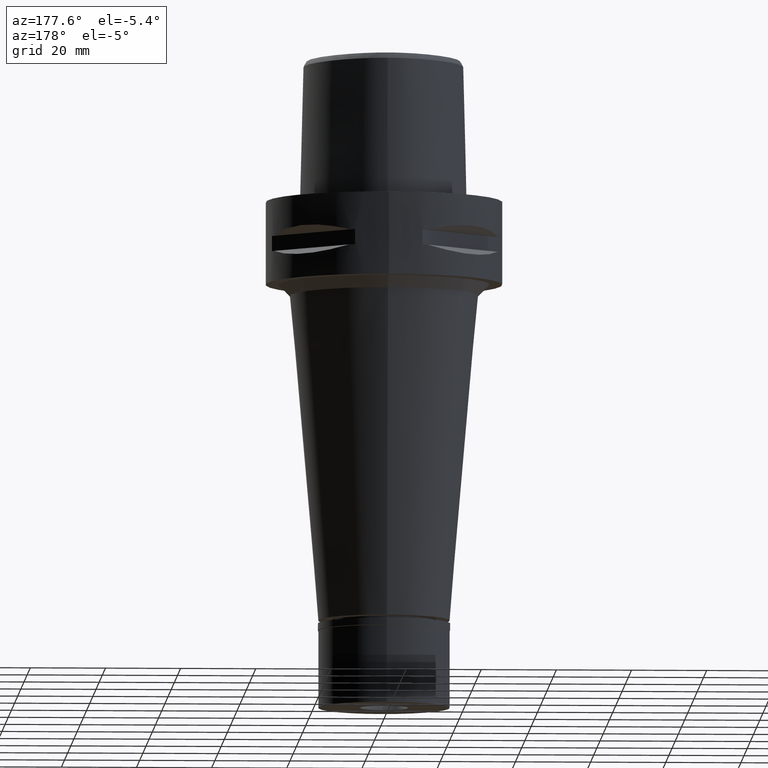
[diagram: clean part render]
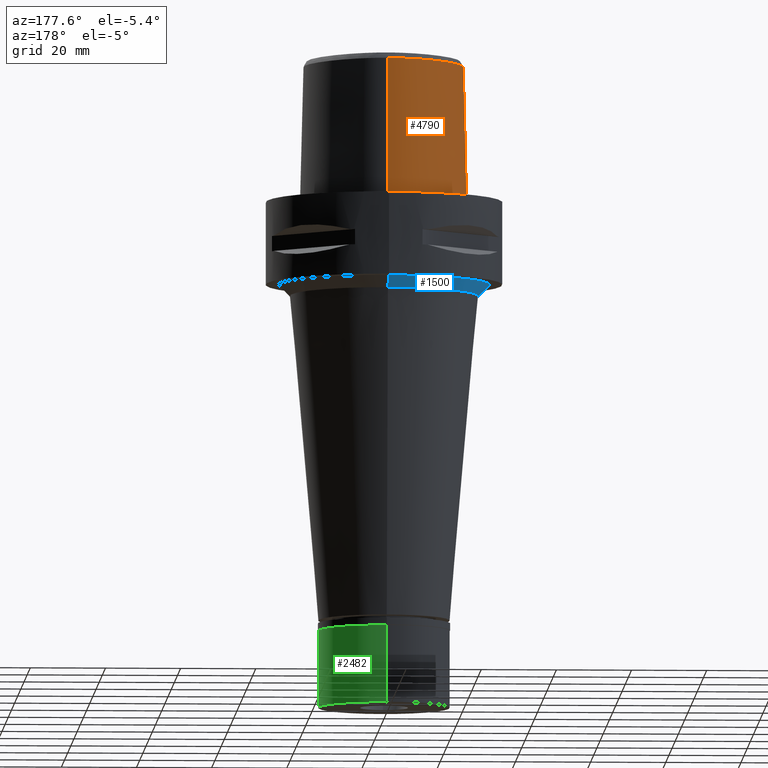
[diagram: same view with three faces highlighted in distinct colors, each labeled with its STEP entity id]
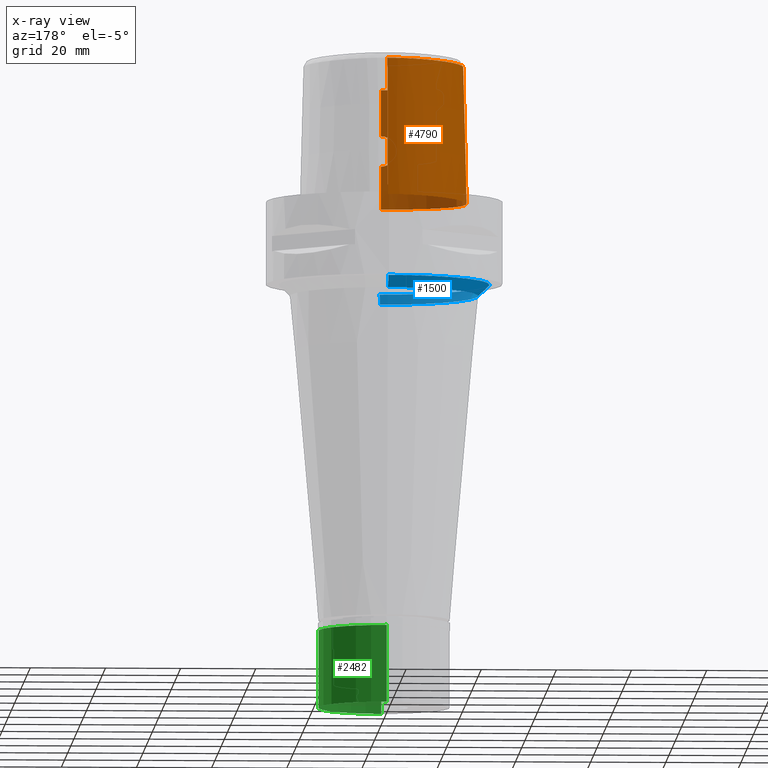
[diagram: x-ray of the same camera — body ghosted, the three highlighted faces saturated]
A machine part, auxiliary view with three faces highlighted in distinct colors.
The next image is the same camera in x-ray (body ghosted, the three faces saturated) — at least one of them is partly hidden behind the body in this view.
Their STEP definitions:

[orange] entity #4790 — the highlighted face is a freeform B-spline surface patch.
#7 = VERTEX_POINT ( 'NONE', #3811 ) ;
#28 = B_SPLINE_CURVE_WITH_KNOTS ( 'NONE', 3,
 ( #550, #2122, #168, #3958, #868, #2804, #4362, #469, #2041, #4517, #4492, #4186, #3728, #4938, #4463, #2629, #2965, #2910, #4160, #1383, #579, #1458, #4089, #3373, #1007, #1816, #2225, #217, #976, #2150, #4881, #271, #3321, #1439, #681, #2248, #3010, #3784, #1053, #2989, #2936, #2198, #4540, #2530, #3807, #293, #4570, #1838, #2601, #657, #2558, #2579, #3704, #605, #3392, #1416, #195, #4959, #1759, #4117, #2175, #1783, #3755, #3345, #4909, #1031, #4138, #631, #246, #1083, #1858, #3415, #4983, #3857, #319, #1579, #727, #2725, #1553, #343, #3081, #1888, #4646, #3927, #4621, #2296, #2319, #2701, #417, #3443, #1482, #755, #1153, #4676, #703 ),
 .UNSPECIFIED., .F., .F.,
 ( 4, 2, 2, 1, 1, 1, 2, 2, 2, 2, 1, 2, 2, 2, 1, 1, 1, 2, 2, 2, 2, 2, 1, 1, 2, 2, 2, 2, 1, 2, 2, 2, 2, 1, 1, 1, 2, 2, 2, 2, 1, 2, 2, 2, 1, 1, 1, 2, 2, 2, 2, 2, 1, 1, 2, 2, 4 ),
 ( 0.0000000000000000000, 0.06250000000001115774, 0.09375000000001666722, 0.1093750000000193179, 0.1171875000000206363, 0.1210937500000211775, 0.1230468750000215938, 0.1250000000000220102, 0.1562500000000262568, 0.1718750000000283384, 0.1796875000000293654, 0.1835937500000296707, 0.1875000000000299760, 0.2187500000000330569, 0.2343750000000345557, 0.2421875000000353606, 0.2460937500000360267, 0.2480468750000360545, 0.2500000000000360822, 0.3125000000000375810, 0.3437500000000383027, 0.3593750000000387468, 0.3671875000000389133, 0.3710937500000389688, 0.3730468750000386358, 0.3750000000000382472, 0.4375000000000286438, 0.4687500000000233702, 0.4843750000000208167, 0.4921875000000194844, 0.5000000000000180966, 0.5625000000000086597, 0.5937500000000042188, 0.6093750000000021094, 0.6171875000000009992, 0.6210937500000005551, 0.6230468750000002220, 0.6249999999999998890, 0.6562499999999998890, 0.6718750000000001110, 0.6796875000000001110, 0.6835937500000001110, 0.6875000000000001110, 0.7187500000000013323, 0.7343750000000019984, 0.7421875000000021094, 0.7460937500000023315, 0.7480468750000024425, 0.7500000000000025535, 0.8125000000000041078, 0.8437500000000049960, 0.8593750000000054401, 0.8671875000000055511, 0.8710937500000057732, 0.8730468750000056621, 0.8750000000000055511, 1.000000000000000000 ),
 .UNSPECIFIED. ) ;
#34 = CARTESIAN_POINT ( 'NONE',  ( -16.95889172207992246, -15.67838866697177735, 2.483871594191090770E-07 ) ) ;
#111 = CARTESIAN_POINT ( 'NONE',  ( -20.34961798018169787, -11.74885741876239997, 2.483871594191090770E-07 ) ) ;
#133 = CARTESIAN_POINT ( 'NONE',  ( -18.08416038725999897, 10.44089487449000053, -0.7304378672458999855 ) ) ;
#136 = CARTESIAN_POINT ( 'NONE',  ( -19.55745547456363553, -11.29150218116343041, 36.52186244848002872 ) ) ;
#163 = CARTESIAN_POINT ( 'NONE',  ( 0.6850314009299001139, 22.83959032778000164, 24.59140819727999983 ) ) ;
#168 = CARTESIAN_POINT ( 'NONE',  ( -0.5036866637238499589, -20.18406862059044471, 19.52728785669997080 ) ) ;
#192 = CARTESIAN_POINT ( 'NONE',  ( -10.75753574118999900, 19.18839676113000081, -0.7304378672458999855 ) ) ;
#195 = CARTESIAN_POINT ( 'NONE',  ( -3.830499027157554970, -20.11062698623148393, 14.18153512544096806 ) ) ;
#213 = CARTESIAN_POINT ( 'NONE',  ( -20.65947727076000007, -8.729764289590001169, 37.25233122954000464 ) ) ;
#217 = CARTESIAN_POINT ( 'NONE',  ( -2.841055161951131058, -20.10000556631501567, 18.38634273631047833 ) ) ;
#246 = CARTESIAN_POINT ( 'NONE',  ( -3.408875187706379872, -20.17633333109262495, 13.31312751154035645 ) ) ;
#271 = CARTESIAN_POINT ( 'NONE',  ( -3.258446753586562661, -20.07522384658319936, 17.91983021284167066 ) ) ;
#279 = CARTESIAN_POINT ( 'NONE',  ( -2.503154198992743051, -19.81241979316217439, 31.80000012753028571 ) ) ;
#293 = CARTESIAN_POINT ( 'NONE',  ( -4.019649019913691390, -20.04316019033999652, 16.01163126942445913 ) ) ;
#319 = CARTESIAN_POINT ( 'NONE',  ( -3.024127618930173345, -20.22444760030267119, 12.80466032897661499 ) ) ;
#340 = CARTESIAN_POINT ( 'NONE',  ( -16.57726026073000014, -15.19304451834000069, 24.59140819727999983 ) ) ;
#343 = CARTESIAN_POINT ( 'NONE',  ( -2.870809693610273605, -20.24156730632854817, 12.64324605246994793 ) ) ;
#389 = EDGE_CURVE ( 'NONE', #4992, #7, #3562, .T. ) ;
#417 = CARTESIAN_POINT ( 'NONE',  ( -1.592612062467924749, -20.34460894491102678, 11.77623291199328115 ) ) ;
#420 = CARTESIAN_POINT ( 'NONE',  ( -18.06826687986402646, 10.43171874688041001, 2.483871594191090770E-07 ) ) ;
#441 = CARTESIAN_POINT ( 'NONE',  ( -0.8548392418636427958, 23.47499999379704150, 2.483871594191090770E-07 ) ) ;
#469 = CARTESIAN_POINT ( 'NONE',  ( -1.435263460292240945, -20.16346600381253396, 19.28743623777307903 ) ) ;
#522 = CARTESIAN_POINT ( 'NONE',  ( -0.5821289162039000598, 22.88453074891999961, 24.59140819727999983 ) ) ;
#545 = CARTESIAN_POINT ( 'NONE',  ( -21.36961487273000060, -0.3886498146834000411, 24.59140819727999983 ) ) ;
#550 = CARTESIAN_POINT ( 'NONE',  ( 0.0000000000000000000, -20.18628283968999781, 19.55000000000000071 ) ) ;
#574 = CARTESIAN_POINT ( 'NONE',  ( -17.80867301941000136, 10.28184205001000073, 11.93048516502000034 ) ) ;
#579 = CARTESIAN_POINT ( 'NONE',  ( -2.236225399043144435, -20.13170464962382411, 18.87669531694537284 ) ) ;
#581 = B_SPLINE_SURFACE_WITH_KNOTS ( 'NONE', 3, 3, ( 
 ( #1333, #4797, #163, #4132 ),
 ( #1380, #4460, #1358, #1026 ),
 ( #627, #2930, #522, #4512 ),
 ( #2193, #1302, #3340, #2116 ),
 ( #2883, #2171, #3673, #3296 ),
 ( #2475, #3236, #4030, #951 ),
 ( #192, #2147, #3645, #2852 ),
 ( #3747, #4053, #4487, #926 ),
 ( #133, #574, #601, #1700 ),
 ( #3724, #3266, #4904, #1001 ),
 ( #4438, #2500, #545, #1734 ),
 ( #4855, #2907, #2553, #3318 ),
 ( #973, #2525, #4085, #3701 ),
 ( #1756, #4112, #4878, #213 ),
 ( #1779, #1410, #3853, #1146 ),
 ( #4562, #4256, #1478, #4977 ),
 ( #1104, #3779, #1048, #4182 ),
 ( #3368, #3035, #676, #1909 ),
 ( #4617, #651, #340, #3460 ),
 ( #4596, #1811, #1123, #2220 ),
 ( #4933, #1521, #4203, #3387 ),
 ( #2647, #1435, #1077, #699 ),
 ( #2264, #2623, #3823, #751 ),
 ( #4153, #3078, #4225, #2316 ),
 ( #5030, #2244, #2985, #1454 ) ),
 .UNSPECIFIED., .F., .F., .F.,
 ( 4, 1, 1, 1, 1, 1, 1, 1, 1, 1, 1, 1, 1, 1, 1, 1, 1, 1, 1, 1, 1, 1, 4 ),
 ( 4, 4 ),
 ( -0.01173777939045999967, 0.0000000000000000000, 0.04166666666736999758, 0.08333333333399001175, 0.1250000000005999923, 0.1666666666673000119, 0.2500000000004999889, 0.3333333333337000215, 0.4166666666670000296, 0.5000000000002999823, 0.5416666666668999985, 0.5833333333335000148, 0.6250000000001000311, 0.6458333333333999837, 0.6666666666667999674, 0.6875000000001000311, 0.7083333333333000637, 0.7500000000000000000, 0.7916666666667000474, 0.8333333333332000326, 0.9166666666664999852, 1.000000000000000000, 1.008985696609000060 ),
 ( -3.546833538676000127E-09, 1.000000180887999912 ),
 .UNSPECIFIED. ) ;
#589 = VERTEX_POINT ( 'NONE', #3674 ) ;
#601 = CARTESIAN_POINT ( 'NONE',  ( -17.53318565155000286, 10.12278922552999916, 24.59140819727999983 ) ) ;
#605 = CARTESIAN_POINT ( 'NONE',  ( -3.952964639633003596, -20.08622609015963789, 14.60890045225522726 ) ) ;
#627 = CARTESIAN_POINT ( 'NONE',  ( -0.6149727129413998794, 23.51889465398999945, -0.7304378672458999855 ) ) ;
#629 = CARTESIAN_POINT ( 'NONE',  ( -20.67704215116071964, -8.734985316449176196, 36.52186244848002872 ) ) ;
#631 = CARTESIAN_POINT ( 'NONE',  ( -3.438474044888220948, -20.17226853620289262, 13.35950353148342629 ) ) ;
#642 = CARTESIAN_POINT ( 'NONE',  ( 4.563465393014999971E-11, 23.47499999999000053, 5.514107688971999147E-14 ) ) ;
#651 = CARTESIAN_POINT ( 'NONE',  ( -16.77374378736999816, -15.44292467660000057, 11.93048516502000034 ) ) ;
#657 = CARTESIAN_POINT ( 'NONE',  ( -4.049663826248573351, -20.05088590020230299, 15.56119206774690866 ) ) ;
#666 = CARTESIAN_POINT ( 'NONE',  ( 2.041042029990999821E-08, -19.88004246002000031, 31.80000004972000127 ) ) ;
#676 = CARTESIAN_POINT ( 'NONE',  ( -18.12052891647000052, -13.74516015646999989, 24.59140819727999983 ) ) ;
#681 = CARTESIAN_POINT ( 'NONE',  ( -3.623054736483445559, -20.05423874947322105, 17.31100359226983443 ) ) ;
#699 = CARTESIAN_POINT ( 'NONE',  ( -6.175998544962999048, -19.37631763026000087, 37.25233122954000464 ) ) ;
#703 = CARTESIAN_POINT ( 'NONE',  ( -9.433993878921999819E-13, -20.38876923348000147, 11.44999999999999929 ) ) ;
#727 = CARTESIAN_POINT ( 'NONE',  ( -2.904838724128873562, -20.23782704190353243, 12.67778573503155748 ) ) ;
#751 = CARTESIAN_POINT ( 'NONE',  ( -1.836486879113999882, -19.76356434131000128, 37.25233122954000464 ) ) ;
#755 = CARTESIAN_POINT ( 'NONE',  ( -1.554881956805006515, -20.34669101430224813, 11.76035872671680593 ) ) ;
#764 = VERTEX_POINT ( 'NONE', #642 ) ;
#785 = CARTESIAN_POINT ( 'NONE',  ( -14.67337964111153426, -17.21410155709229883, 2.483871594191090770E-07 ) ) ;
#813 = CARTESIAN_POINT ( 'NONE',  ( -11.23259756514371865, -18.89324218163431368, 2.483871594191090770E-07 ) ) ;
#818 = CARTESIAN_POINT ( 'NONE',  ( -1.721503160415000160E-11, 22.56201468012000078, 36.52186680743999858 ) ) ;
#857 = CARTESIAN_POINT ( 'NONE',  ( -3.736722311398999796, -19.67781602443999844, 31.80000000000000071 ) ) ;
#868 = CARTESIAN_POINT ( 'NONE',  ( -1.025211814383784725, -20.17465818941732891, 19.42048404905371584 ) ) ;
#923 = VERTEX_POINT ( 'NONE', #1317 ) ;
#926 = CARTESIAN_POINT ( 'NONE',  ( -13.69241955327999882, 15.03666371597999962, 37.25233122954000464 ) ) ;
#933 = B_SPLINE_CURVE_WITH_KNOTS ( 'NONE', 3,
 ( #1836, #2318, #4206, #4184 ),
 .UNSPECIFIED., .F., .F.,
 ( 4, 4 ),
 ( 0.0000000000000000000, 1.000000000000000000 ),
 .UNSPECIFIED. ) ;
#951 = CARTESIAN_POINT ( 'NONE',  ( -7.099337617061999950, 20.50831363474999947, 37.25233122954000464 ) ) ;
#973 = CARTESIAN_POINT ( 'NONE',  ( -22.07548129577999774, -6.850245536155000536, -0.7304378672458999855 ) ) ;
#974 = CARTESIAN_POINT ( 'NONE',  ( -7.300578999877369135, -19.07170748892179901, 36.52186244848002872 ) ) ;
#976 = CARTESIAN_POINT ( 'NONE',  ( -2.852856104024932726, -20.09931387729060859, 18.37467926461876644 ) ) ;
#977 = ORIENTED_EDGE ( 'NONE', *, *, #2352, .T. ) ;
#1001 = CARTESIAN_POINT ( 'NONE',  ( -19.86834402504000252, 4.339653564693000121, 37.25233122954000464 ) ) ;
#1007 = CARTESIAN_POINT ( 'NONE',  ( -2.696415149898497621, -20.10825975497923679, 18.52316981035199817 ) ) ;
#1026 = CARTESIAN_POINT ( 'NONE',  ( 0.4441906931527999647, 22.53710756570000129, 37.25233122954000464 ) ) ;
#1031 = CARTESIAN_POINT ( 'NONE',  ( -3.520475118947735460, -20.16064927175107968, 13.49656734865833840 ) ) ;
#1048 = CARTESIAN_POINT ( 'NONE',  ( -19.15132511383999869, -12.46323141696999848, 24.59140819727999983 ) ) ;
#1051 = CARTESIAN_POINT ( 'NONE',  ( -16.39211280192303732, -14.95758113319121918, 36.52186244848002872 ) ) ;
#1053 = CARTESIAN_POINT ( 'NONE',  ( -3.724287987559554924, -20.04899117660404073, 17.09139312267753041 ) ) ;
#1054 = VERTEX_POINT ( 'NONE', #2039 ) ;
#1077 = CARTESIAN_POINT ( 'NONE',  ( -6.232237555819000185, -19.68961163828000238, 24.59140819727999983 ) ) ;
#1083 = CARTESIAN_POINT ( 'NONE',  ( -3.388781880797233637, -20.17907268769692308, 13.28211842279118393 ) ) ;
#1104 = CARTESIAN_POINT ( 'NONE',  ( -19.66427015006999923, -12.83600704949000004, -0.7304378672458999855 ) ) ;
#1115 = CARTESIAN_POINT ( 'NONE',  ( -3.736722311398999796, -19.67781602443999844, 31.80000000000000071 ) ) ;
#1123 = CARTESIAN_POINT ( 'NONE',  ( -14.36818022355000046, -16.67825710904000047, 24.59140819727999983 ) ) ;
#1146 = CARTESIAN_POINT ( 'NONE',  ( -20.07948473933999978, -10.22500055825999965, 37.25233122954000464 ) ) ;
#1153 = CARTESIAN_POINT ( 'NONE',  ( -1.035503055403208972, -20.37488775911207739, 11.54570873351795335 ) ) ;
#1179 = CARTESIAN_POINT ( 'NONE',  ( 6.820926584186569121E-09, -19.98212988583463812, 27.71666688228196307 ) ) ;
#1183 = CARTESIAN_POINT ( 'NONE',  ( -19.64947365360898601, -12.82525390258760112, 2.483871594191090770E-07 ) ) ;
#1234 = ORIENTED_EDGE ( 'NONE', *, *, #1501, .F. ) ;
#1256 = CARTESIAN_POINT ( 'NONE',  ( -20.74942740292559762, 4.657187497882550709, 2.483871594191090770E-07 ) ) ;
#1302 = CARTESIAN_POINT ( 'NONE',  ( -2.503210890449000026, 22.99958932076000195, 11.93048516502000034 ) ) ;
#1317 = CARTESIAN_POINT ( 'NONE',  ( -1.721503160415000160E-11, 22.56201468012000078, 36.52186680743999858 ) ) ;
#1333 = CARTESIAN_POINT ( 'NONE',  ( 0.7234356453960000266, 23.47140593137000053, -0.7304378672458999855 ) ) ;
#1358 = CARTESIAN_POINT ( 'NONE',  ( 0.4569144474111999643, 22.85341777274000208, 24.59140819727999983 ) ) ;
#1374 = EDGE_CURVE ( 'NONE', #4524, #923, #4022, .T. ) ;
#1380 = CARTESIAN_POINT ( 'NONE',  ( 0.4823619559277999569, 23.48603818683000100, -0.7304378672458999855 ) ) ;
#1381 = CARTESIAN_POINT ( 'NONE',  ( -1.721503160415000160E-11, 22.56201468012000078, 36.52186680743999858 ) ) ;
#1383 = CARTESIAN_POINT ( 'NONE',  ( -2.218923952808330213, -20.13252298611807234, 18.88809933006111308 ) ) ;
#1393 = ORIENTED_EDGE ( 'NONE', *, *, #389, .F. ) ;
#1410 = CARTESIAN_POINT ( 'NONE',  ( -20.65879042174999825, -10.48283616735000123, 11.93048516502000034 ) ) ;
#1416 = CARTESIAN_POINT ( 'NONE',  ( -3.862607746689350474, -20.10460055501470578, 14.28038032241866873 ) ) ;
#1435 = CARTESIAN_POINT ( 'NONE',  ( -6.288476566674999546, -20.00290564628999945, 11.93048516502000034 ) ) ;
#1437 = CARTESIAN_POINT ( 'NONE',  ( -14.22011356156141382, -16.41829364186389029, 36.52186244848002872 ) ) ;
#1439 = CARTESIAN_POINT ( 'NONE',  ( -3.538328569009167701, -20.05892019842420027, 17.47427695038233608 ) ) ;
#1454 = CARTESIAN_POINT ( 'NONE',  ( 0.6657744276083999990, -19.73734233519000369, 37.25233122954000464 ) ) ;
#1458 = CARTESIAN_POINT ( 'NONE',  ( -2.360389010909421881, -20.12578017861218527, 18.79373387522312200 ) ) ;
#1478 = CARTESIAN_POINT ( 'NONE',  ( -19.81622811000000084, -11.44090463245999878, 24.59140819727999983 ) ) ;
#1482 = CARTESIAN_POINT ( 'NONE',  ( -1.559921522258880699, -20.34641501698339638, 11.76246137009506576 ) ) ;
#1501 = EDGE_CURVE ( 'NONE', #4524, #1648, #933, .T. ) ;
#1521 = CARTESIAN_POINT ( 'NONE',  ( -11.13012653184999934, -18.61140109523000064, 11.93048516502000034 ) ) ;
#1553 = CARTESIAN_POINT ( 'NONE',  ( -2.875757950341225389, -20.24102512592877190, 12.64823125461330733 ) ) ;
#1579 = CARTESIAN_POINT ( 'NONE',  ( -2.945118222697316490, -20.23335776654016271, 12.71958560101062474 ) ) ;
#1648 = VERTEX_POINT ( 'NONE', #857 ) ;
#1700 = CARTESIAN_POINT ( 'NONE',  ( -17.25769828369000081, 9.963736401054999803, 37.25233122954000464 ) ) ;
#1734 = CARTESIAN_POINT ( 'NONE',  ( -21.05621879879000247, -0.4440252143223999415, 37.25233122954000464 ) ) ;
#1736 = CARTESIAN_POINT ( 'NONE',  ( -4.467522189395983112, -19.48130287050733145, 36.52186244848002872 ) ) ;
#1756 = CARTESIAN_POINT ( 'NONE',  ( -21.57281239714000165, -9.001246196527999288, -0.7304378672458999855 ) ) ;
#1757 = CARTESIAN_POINT ( 'NONE',  ( -18.90964971338106082, -12.28759719904414460, 36.52186244848002872 ) ) ;
#1759 = CARTESIAN_POINT ( 'NONE',  ( -3.765489374949922308, -20.12204791086962530, 14.00864527312732832 ) ) ;
#1762 = ORIENTED_EDGE ( 'NONE', *, *, #3886, .T. ) ;
#1773 = CARTESIAN_POINT ( 'NONE',  ( -9.433993878921999819E-13, -20.38876923348000147, 11.44999999999999929 ) ) ;
#1779 = CARTESIAN_POINT ( 'NONE',  ( -20.94844326295000414, -10.61175397189999892, -0.7304378672458999855 ) ) ;
#1783 = CARTESIAN_POINT ( 'NONE',  ( -3.744859968352620250, -20.12555785049274348, 13.95773689203772960 ) ) ;
#1811 = CARTESIAN_POINT ( 'NONE',  ( -14.52531259854000112, -16.95413742171000138, 11.93048516502000034 ) ) ;
#1814 = CARTESIAN_POINT ( 'NONE',  ( -21.07430010672754150, -0.4408303445193105241, 36.52186244848002872 ) ) ;
#1816 = CARTESIAN_POINT ( 'NONE',  ( -2.781497320433748754, -20.10345565782015953, 18.44409576488592961 ) ) ;
#1836 = CARTESIAN_POINT ( 'NONE',  ( -3.637738201363999835, -19.56971413236999879, 36.52186244848000030 ) ) ;
#1838 = CARTESIAN_POINT ( 'NONE',  ( -4.044848056823934002, -20.04744994059100804, 15.72117637690397629 ) ) ;
#1858 = CARTESIAN_POINT ( 'NONE',  ( -3.377353639916970796, -20.18061854612786377, 13.26476903757086845 ) ) ;
#1888 = CARTESIAN_POINT ( 'NONE',  ( -2.421503357398448575, -20.28648737493420384, 12.24279215501701579 ) ) ;
#1909 = CARTESIAN_POINT ( 'NONE',  ( -17.88993634006999756, -13.52675000034000163, 37.25233122954000464 ) ) ;
#1963 = CARTESIAN_POINT ( 'NONE',  ( -22.05732873705026265, -6.847636717862386924, 2.483871594191090770E-07 ) ) ;
#2008 = CARTESIAN_POINT ( 'NONE',  ( -9.433993878921999819E-13, -20.38876923348000147, 11.44999999999999929 ) ) ;
#2035 = CARTESIAN_POINT ( 'NONE',  ( -20.93173251642900823, -10.60431640372373607, 2.483871594191090770E-07 ) ) ;
#2039 = CARTESIAN_POINT ( 'NONE',  ( 0.0000000000000000000, -20.18628283968999781, 19.55000000000000071 ) ) ;
#2041 = CARTESIAN_POINT ( 'NONE',  ( -1.492522727688411210, -20.16161937968067974, 19.26502569008748011 ) ) ;
#2093 = FACE_OUTER_BOUND ( 'NONE', #3617, .T. ) ;
#2116 = CARTESIAN_POINT ( 'NONE',  ( -2.373090257858999852, 22.37624318521999811, 37.25233122954000464 ) ) ;
#2118 = CARTESIAN_POINT ( 'NONE',  ( -4.757642277158428357, 21.67478330407306686, 36.52186244848002872 ) ) ;
#2122 = CARTESIAN_POINT ( 'NONE',  ( -0.2473412322776364636, -20.18628283968999781, 19.55000000000000071 ) ) ;
#2147 = CARTESIAN_POINT ( 'NONE',  ( -10.55288401086999883, 18.94467581816000035, 11.93048516502000034 ) ) ;
#2150 = CARTESIAN_POINT ( 'NONE',  ( -2.857836109605272679, -20.09902107152586126, 18.36973246307368157 ) ) ;
#2171 = CARTESIAN_POINT ( 'NONE',  ( -4.987110641277000767, 22.24795274030999792, 11.93048516502000034 ) ) ;
#2175 = CARTESIAN_POINT ( 'NONE',  ( -3.748882549353759863, -20.12487725615873302, 13.96753193210146193 ) ) ;
#2193 = CARTESIAN_POINT ( 'NONE',  ( -2.568271206742999802, 23.31126238853000032, -0.7304378672458999855 ) ) ;
#2196 = CARTESIAN_POINT ( 'NONE',  ( -10.91891098965188789, -18.03046406390367906, 36.52186244848002872 ) ) ;
#2198 = CARTESIAN_POINT ( 'NONE',  ( -3.740129524201636801, -20.04822853724977705, 17.05370687140990427 ) ) ;
#2220 = CARTESIAN_POINT ( 'NONE',  ( -14.21104784857000070, -16.40237679636999601, 37.25233122954000464 ) ) ;
#2225 = CARTESIAN_POINT ( 'NONE',  ( -2.823299992936001868, -20.10104229143708565, 18.40378355436401847 ) ) ;
#2244 = CARTESIAN_POINT ( 'NONE',  ( 0.6779535328339999500, -20.37023514810000080, 11.93048516502000034 ) ) ;
#2248 = CARTESIAN_POINT ( 'NONE',  ( -3.649474620161969440, -20.05281468735705275, 17.25706831816531306 ) ) ;
#2264 = CARTESIAN_POINT ( 'NONE',  ( -1.886862292479999814, -20.71358860380999900, -0.7304378672458999855 ) ) ;
#2296 = CARTESIAN_POINT ( 'NONE',  ( -1.758544761682761859, -20.33485355119278992, 11.85123508312911866 ) ) ;
#2316 = CARTESIAN_POINT ( 'NONE',  ( 0.4439216874990000172, -19.74161821016999951, 37.25233122954000464 ) ) ;
#2318 = CARTESIAN_POINT ( 'NONE',  ( -3.671249123513567802, -19.60525173594972514, 34.94790829898666829 ) ) ;
#2319 = CARTESIAN_POINT ( 'NONE',  ( -1.678454493255880919, -20.33967188086236888, 11.81405957882842195 ) ) ;
#2340 = CARTESIAN_POINT ( 'NONE',  ( 6.840904005482245240E-09, -20.08420636276312976, 23.63333344114113288 ) ) ;
#2344 = CARTESIAN_POINT ( 'NONE',  ( -2.113823672695231526, -20.67499999378846454, 2.483871594191090770E-07 ) ) ;
#2352 = EDGE_CURVE ( 'NONE', #923, #764, #2751, .T. ) ;
#2371 = CARTESIAN_POINT ( 'NONE',  ( -5.098437014965430336, 22.52602538483874639, 2.483871594191090770E-07 ) ) ;
#2447 = DIRECTION ( 'NONE',  ( 1.720340780425959448E-12, 0.02499051290962944413, -0.9996876883629776112 ) ) ;
#2475 = CARTESIAN_POINT ( 'NONE',  ( -7.580410842533000348, 21.33037926697000231, -0.7304378672458999855 ) ) ;
#2500 = CARTESIAN_POINT ( 'NONE',  ( -21.68301094665999784, -0.3332744150445000053, 11.93048516502000034 ) ) ;
#2502 = CARTESIAN_POINT ( 'NONE',  ( -17.27359245833155654, 9.972912913898687393, 36.52186244848002872 ) ) ;
#2525 = CARTESIAN_POINT ( 'NONE',  ( -21.76083705146000113, -6.805026034460000872, 11.93048516502000034 ) ) ;
#2526 = CARTESIAN_POINT ( 'NONE',  ( -17.90324032097054641, -13.53935111955642689, 36.52186244848002872 ) ) ;
#2530 = CARTESIAN_POINT ( 'NONE',  ( -3.925407708632545400, -20.04099055260236284, 16.53138977182225133 ) ) ;
#2553 = CARTESIAN_POINT ( 'NONE',  ( -21.62788386333999924, -4.104079499281999333, 24.59140819727999983 ) ) ;
#2558 = CARTESIAN_POINT ( 'NONE',  ( -4.050018014422888335, -20.05167593067614717, 15.52805627100565644 ) ) ;
#2579 = CARTESIAN_POINT ( 'NONE',  ( -4.049848995936167206, -20.05861656952081873, 15.25314035233473398 ) ) ;
#2601 = CARTESIAN_POINT ( 'NONE',  ( -4.048193638326267774, -20.04945813672258836, 15.62509932612174346 ) ) ;
#2623 = CARTESIAN_POINT ( 'NONE',  ( -1.870070488024999866, -20.39691384964999799, 11.93048516502000034 ) ) ;
#2629 = CARTESIAN_POINT ( 'NONE',  ( -2.004675599387941709, -20.14220382833398659, 19.01976680093504157 ) ) ;
#2647 = CARTESIAN_POINT ( 'NONE',  ( -6.344715577530000594, -20.31619965430999741, -0.7304378672458999855 ) ) ;
#2701 = CARTESIAN_POINT ( 'NONE',  ( -1.638635025842608561, -20.34200884320521752, 11.79610711465544171 ) ) ;
#2725 = CARTESIAN_POINT ( 'NONE',  ( -2.887412005234945234, -20.23974548682596719, 12.66003157092543674 ) ) ;
#2728 = CARTESIAN_POINT ( 'NONE',  ( -2.564517725680427684, 23.29328124389028076, 2.483871594191090770E-07 ) ) ;
#2751 = LINE ( 'NONE', #818, #3012 ) ;
#2776 = DIRECTION ( 'NONE',  ( -5.771733019804828765E-13, -0.02499051295389925070, -0.9996876883618708298 ) ) ;
#2798 = CARTESIAN_POINT ( 'NONE',  ( -22.24453907232029692, -4.100468750036125876, 2.483871594191090770E-07 ) ) ;
#2804 = CARTESIAN_POINT ( 'NONE',  ( -1.222079501497006504, -20.16967619644332643, 19.36182732690497943 ) ) ;
#2852 = CARTESIAN_POINT ( 'NONE',  ( -10.14358055024000116, 18.45723393221999942, 37.25233122954000464 ) ) ;
#2883 = CARTESIAN_POINT ( 'NONE',  ( -5.105252917855000128, 22.54305024677000091, -0.7304378672458999855 ) ) ;
#2907 = CARTESIAN_POINT ( 'NONE',  ( -21.94536971671000458, -4.102220499650999663, 11.93048516502000034 ) ) ;
#2910 = CARTESIAN_POINT ( 'NONE',  ( -2.141634863661368460, -20.13611892945429815, 18.93776449056523248 ) ) ;
#2930 = CARTESIAN_POINT ( 'NONE',  ( -0.5985508145726999851, 23.20171270144999909, 11.93048516502000034 ) ) ;
#2936 = CARTESIAN_POINT ( 'NONE',  ( -3.738021026999630347, -20.04832921641926546, 17.05876513949562678 ) ) ;
#2963 = CARTESIAN_POINT ( 'NONE',  ( -2.376843896516407373, 22.39422508474381246, 36.52186244848002872 ) ) ;
#2965 = CARTESIAN_POINT ( 'NONE',  ( -2.095753548412724765, -20.13818364214429835, 18.96577014705994912 ) ) ;
#2985 = CARTESIAN_POINT ( 'NONE',  ( 0.6718639802211999745, -20.05378874165000269, 24.59140819727999983 ) ) ;
#2989 = CARTESIAN_POINT ( 'NONE',  ( -3.732557508995414608, -20.04859144260191783, 17.07180291399404837 ) ) ;
#3010 = CARTESIAN_POINT ( 'NONE',  ( -3.686560471766106684, -20.05088322548401791, 17.17709135335207904 ) ) ;
#3012 = VECTOR ( 'NONE', #2447, 999.9999999999998863 ) ;
#3028 = EDGE_CURVE ( 'NONE', #1054, #4992, #28, .T. ) ;
#3035 = CARTESIAN_POINT ( 'NONE',  ( -18.35112149287999728, -13.96357031261000081, 11.93048516502000034 ) ) ;
#3059 = EDGE_CURVE ( 'NONE', #589, #1054, #3510, .T. ) ;
#3063 = CARTESIAN_POINT ( 'NONE',  ( 2.041042029990999821E-08, -19.88004246002000031, 31.80000004972000127 ) ) ;
#3078 = CARTESIAN_POINT ( 'NONE',  ( 0.4520368072134999804, -20.37458452970999900, 11.93048516502000034 ) ) ;
#3081 = CARTESIAN_POINT ( 'NONE',  ( -2.647727988112003494, -20.26593689667652853, 12.42012271609039686 ) ) ;
#3217 = ORIENTED_EDGE ( 'NONE', *, *, #4747, .T. ) ;
#3236 = CARTESIAN_POINT ( 'NONE',  ( -7.420053100709999683, 21.05635738955999869, 11.93048516502000034 ) ) ;
#3266 = CARTESIAN_POINT ( 'NONE',  ( -20.46725037739999919, 4.555493625293999926, 11.93048516502000034 ) ) ;
#3289 = B_SPLINE_CURVE_WITH_KNOTS ( 'NONE', 3,
 ( #666, #3793, #279, #1115 ),
 .UNSPECIFIED., .F., .F.,
 ( 4, 4 ),
 ( 0.0000000000000000000, 1.000000000000000000 ),
 .UNSPECIFIED. ) ;
#3296 = CARTESIAN_POINT ( 'NONE',  ( -4.750826088121999469, 21.65775772739999638, 37.25233122954000464 ) ) ;
#3318 = CARTESIAN_POINT ( 'NONE',  ( -21.31039800996000366, -4.105938498911998913, 37.25233122954000464 ) ) ;
#3319 = CARTESIAN_POINT ( 'NONE',  ( -20.09619618741553992, -10.23243843868202418, 36.52186244848002872 ) ) ;
#3321 = CARTESIAN_POINT ( 'NONE',  ( -3.474550157063431843, -20.06258684786148194, 17.58509941784212316 ) ) ;
#3340 = CARTESIAN_POINT ( 'NONE',  ( -2.438150574154000161, 22.68791625299000358, 24.59140819727999983 ) ) ;
#3345 = CARTESIAN_POINT ( 'NONE',  ( -3.646271025386952136, -20.14180172674266345, 13.73229968810843893 ) ) ;
#3368 = CARTESIAN_POINT ( 'NONE',  ( -18.58171406929000113, -14.18198046874000084, -0.7304378672458999855 ) ) ;
#3370 = CARTESIAN_POINT ( 'NONE',  ( -10.15538788052766073, 18.47129535093935004, 36.52186244848002872 ) ) ;
#3373 = CARTESIAN_POINT ( 'NONE',  ( -2.621021505587177725, -20.11233874864635496, 18.58822781674975388 ) ) ;
#3387 = CARTESIAN_POINT ( 'NONE',  ( -10.91263698726999998, -18.01320775652999728, 37.25233122954000464 ) ) ;
#3392 = CARTESIAN_POINT ( 'NONE',  ( -3.921269265871361931, -20.09311890564809744, 14.47775228273900971 ) ) ;
#3395 = ORIENTED_EDGE ( 'NONE', *, *, #1374, .T. ) ;
#3415 = CARTESIAN_POINT ( 'NONE',  ( -3.294464282139350164, -20.19175818983858051, 13.14063372506664606 ) ) ;
#3443 = CARTESIAN_POINT ( 'NONE',  ( -1.572984596533151036, -20.34569619827904674, 11.76794029727449953 ) ) ;
#3460 = CARTESIAN_POINT ( 'NONE',  ( -16.38077673410000301, -14.94316436008999993, 37.25233122954000464 ) ) ;
#3465 = CARTESIAN_POINT ( 'NONE',  ( 0.0000000000000000000, -20.18628283968999781, 19.55000000000000071 ) ) ;
#3510 = B_SPLINE_CURVE_WITH_KNOTS ( 'NONE', 3,
 ( #3063, #1179, #2340, #3465 ),
 .UNSPECIFIED., .F., .F.,
 ( 4, 4 ),
 ( 0.0000000000000000000, 1.000000000000000000 ),
 .UNSPECIFIED. ) ;
#3540 = CARTESIAN_POINT ( 'NONE',  ( 4.563465393014999971E-11, 23.47499999999000053, 5.514107688971999147E-14 ) ) ;
#3562 = LINE ( 'NONE', #2008, #4730 ) ;
#3593 = CARTESIAN_POINT ( 'NONE',  ( -6.341471018108045143, -20.29812499385486291, 2.483871594191090770E-07 ) ) ;
#3617 = EDGE_LOOP ( 'NONE', ( #1393, #4141, #3985, #1762, #1234, #3395, #977, #3217 ) ) ;
#3621 = CARTESIAN_POINT ( 'NONE',  ( -21.97832647171494003, -0.2810937510864339739, 2.483871594191090770E-07 ) ) ;
#3645 = CARTESIAN_POINT ( 'NONE',  ( -10.34823228055999955, 18.70095487519000343, 24.59140819727999983 ) ) ;
#3647 = CARTESIAN_POINT ( 'NONE',  ( -3.637738201363999835, -19.56971413236999879, 36.52186244848000030 ) ) ;
#3673 = CARTESIAN_POINT ( 'NONE',  ( -4.868968364699999718, 21.95285523385999937, 24.59140819727999983 ) ) ;
#3674 = CARTESIAN_POINT ( 'NONE',  ( 2.041042029990999821E-08, -19.88004246002000031, 31.80000004972000127 ) ) ;
#3701 = CARTESIAN_POINT ( 'NONE',  ( -21.13154856282000083, -6.714587031070999856, 37.25233122954000464 ) ) ;
#3704 = CARTESIAN_POINT ( 'NONE',  ( -4.027530768677416440, -20.06783249596207597, 14.99855479653706603 ) ) ;
#3724 = CARTESIAN_POINT ( 'NONE',  ( -20.76670355358000108, 4.663413655593999785, -0.7304378672458999855 ) ) ;
#3728 = CARTESIAN_POINT ( 'NONE',  ( -1.656252726927804675, -20.15609978928700485, 19.19765142506503608 ) ) ;
#3747 = CARTESIAN_POINT ( 'NONE',  ( -14.42198652363000022, 15.65278600556999855, -0.7304378672458999855 ) ) ;
#3755 = CARTESIAN_POINT ( 'NONE',  ( -3.698122373793031770, -20.13343971463974924, 13.84482020408101555 ) ) ;
#3779 = CARTESIAN_POINT ( 'NONE',  ( -19.40779763196000118, -12.64961923323000015, 11.93048516502000034 ) ) ;
#3784 = CARTESIAN_POINT ( 'NONE',  ( -3.704467467891571886, -20.04996865237282222, 17.13733399074459030 ) ) ;
#3787 = CARTESIAN_POINT ( 'NONE',  ( -3.637738201363999835, -19.56971413236999879, 36.52186244848000030 ) ) ;
#3793 = CARTESIAN_POINT ( 'NONE',  ( -1.251533273949746894, -19.88005341379766122, 31.80000012753028571 ) ) ;
#3807 = CARTESIAN_POINT ( 'NONE',  ( -4.001055636211795274, -20.04208398455366336, 16.14154222857165522 ) ) ;
#3811 = CARTESIAN_POINT ( 'NONE',  ( -7.554098293773000222E-12, -20.67499999999999716, 5.802765675373999636E-14 ) ) ;
#3823 = CARTESIAN_POINT ( 'NONE',  ( -1.853278683568999829, -20.08023909547999963, 24.59140819727999983 ) ) ;
#3853 = CARTESIAN_POINT ( 'NONE',  ( -20.36913758053999857, -10.35391836281000089, 24.59140819727999983 ) ) ;
#3857 = CARTESIAN_POINT ( 'NONE',  ( -3.089131642920993404, -20.21685897408069010, 12.88004451868239464 ) ) ;
#3886 = EDGE_CURVE ( 'NONE', #589, #1648, #3289, .T. ) ;
#3927 = CARTESIAN_POINT ( 'NONE',  ( -1.975954942202938325, -20.32065689222462979, 11.96260358356428455 ) ) ;
#3958 = CARTESIAN_POINT ( 'NONE',  ( -0.8941136475783433291, -20.17742596329177118, 19.45229334933506848 ) ) ;
#3985 = ORIENTED_EDGE ( 'NONE', *, *, #3059, .F. ) ;
#4003 = CARTESIAN_POINT ( 'NONE',  ( -21.55524825412133083, -8.996025388850016569, 2.483871594191090770E-07 ) ) ;
#4022 = B_SPLINE_CURVE_WITH_KNOTS ( 'NONE', 3,
 ( #3647, #1736, #974, #2196, #1437, #1051, #2526, #1757, #136, #3319, #629, #4936, #4857, #1814, #4440, #2502, #4879, #3370, #4055, #2118, #2963, #4489, #1381 ),
 .UNSPECIFIED., .F., .F.,
 ( 4, 1, 1, 1, 1, 1, 1, 1, 1, 1, 1, 1, 1, 1, 1, 1, 1, 1, 1, 1, 4 ),
 ( 0.0000000000000000000, 0.03580973941722938314, 0.1234633994701893611, 0.1672902294965115666, 0.2111170595230442426, 0.2549438895495767521, 0.2768573045626853135, 0.2987707195758991241, 0.3206841345892179618, 0.3425975496024316613, 0.3864243796288590604, 0.4302512096552865151, 0.4740780396817139697, 0.5617316997346739615, 0.6493853597876338979, 0.7370390198404888071, 0.8246926798933436054, 0.8685195099198762536, 0.9123463399463140888, 0.9561731699727626932, 1.000000000000000000 ),
 .UNSPECIFIED. ) ;
#4030 = CARTESIAN_POINT ( 'NONE',  ( -7.259695358885999816, 20.78233551214999864, 24.59140819727999983 ) ) ;
#4053 = CARTESIAN_POINT ( 'NONE',  ( -14.17879753351000005, 15.44741190903999950, 11.93048516502000034 ) ) ;
#4055 = CARTESIAN_POINT ( 'NONE',  ( -7.108589416785072501, 20.52412325828678874, 36.52186244848002872 ) ) ;
#4085 = CARTESIAN_POINT ( 'NONE',  ( -21.44619280714000098, -6.759806532765999521, 24.59140819727999983 ) ) ;
#4089 = CARTESIAN_POINT ( 'NONE',  ( -2.467128207654216698, -20.12044499745018200, 18.71456023906641519 ) ) ;
#4112 = CARTESIAN_POINT ( 'NONE',  ( -21.26836735500999964, -8.910752227549000537, 11.93048516502000034 ) ) ;
#4117 = CARTESIAN_POINT ( 'NONE',  ( -3.755562140673116556, -20.12374194796142390, 13.98397501487587746 ) ) ;
#4132 = CARTESIAN_POINT ( 'NONE',  ( 0.6658292786969000066, 22.52368252598999732, 37.25233122954000464 ) ) ;
#4134 = B_SPLINE_CURVE_WITH_KNOTS ( 'NONE', 3,
 ( #3540, #441, #2728, #2371, #4338, #4678, #4749, #420, #1256, #3621, #2798, #1963, #4003, #2035, #111, #1183, #4772, #34, #785, #813, #3593, #2344, #4358 ),
 .UNSPECIFIED., .F., .F.,
 ( 4, 1, 1, 1, 1, 1, 1, 1, 1, 1, 1, 1, 1, 1, 1, 1, 1, 1, 1, 1, 4 ),
 ( 0.0000000000000000000, 0.04166666666736999758, 0.08333333333399001175, 0.1250000000005999923, 0.1666666666673000119, 0.2500000000004999889, 0.3333333333337000215, 0.4166666666670000296, 0.5000000000002999823, 0.5416666666668999985, 0.5833333333335000148, 0.6250000000001000311, 0.6458333333333999837, 0.6666666666667999674, 0.6875000000001000311, 0.7083333333333000637, 0.7500000000000000000, 0.7916666666667000474, 0.8333333333332000326, 0.9166666666664999852, 1.000000000000000000 ),
 .UNSPECIFIED. ) ;
#4138 = CARTESIAN_POINT ( 'NONE',  ( -3.466483550187511753, -20.16833646136333513, 13.40542637771374856 ) ) ;
#4141 = ORIENTED_EDGE ( 'NONE', *, *, #3028, .F. ) ;
#4153 = CARTESIAN_POINT ( 'NONE',  ( 0.4560943670707000019, -20.69106768949000141, -0.7304378672458999855 ) ) ;
#4160 = CARTESIAN_POINT ( 'NONE',  ( -2.187955111050584822, -20.13397228737159850, 18.90818030783799841 ) ) ;
#4182 = CARTESIAN_POINT ( 'NONE',  ( -18.89485259573000064, -12.27684360070000125, 37.25233122954000464 ) ) ;
#4184 = CARTESIAN_POINT ( 'NONE',  ( -3.736722311398999796, -19.67781602443999844, 31.80000000000000071 ) ) ;
#4186 = CARTESIAN_POINT ( 'NONE',  ( -1.543048130379650829, -20.15993798682084304, 19.24453660913642494 ) ) ;
#4203 = CARTESIAN_POINT ( 'NONE',  ( -11.02138175956000055, -18.31230442588000429, 24.59140819727999983 ) ) ;
#4206 = CARTESIAN_POINT ( 'NONE',  ( -3.704239276368590961, -19.64128040965313460, 33.37395414949332917 ) ) ;
#4225 = CARTESIAN_POINT ( 'NONE',  ( 0.4479792473561999833, -20.05810136994000104, 24.59140819727999983 ) ) ;
#4256 = CARTESIAN_POINT ( 'NONE',  ( -20.09084467959999998, -11.59945458344000002, 11.93048516502000034 ) ) ;
#4338 = CARTESIAN_POINT ( 'NONE',  ( -7.571159431204942614, 21.31457030712817513, 2.483871594191090770E-07 ) ) ;
#4358 = CARTESIAN_POINT ( 'NONE',  ( -7.554098293773000222E-12, -20.67499999999999716, 5.802765675373999636E-14 ) ) ;
#4362 = CARTESIAN_POINT ( 'NONE',  ( -1.320565687274587896, -20.16697761691573376, 19.32976498246027575 ) ) ;
#4438 = CARTESIAN_POINT ( 'NONE',  ( -21.99640702058999864, -0.2778990154055000494, -0.7304378672458999855 ) ) ;
#4440 = CARTESIAN_POINT ( 'NONE',  ( -19.88562090098589152, 4.345879983792489298, 36.52186244848002872 ) ) ;
#4460 = CARTESIAN_POINT ( 'NONE',  ( 0.4696382016694999884, 23.16972797979000021, 11.93048516502000034 ) ) ;
#4463 = CARTESIAN_POINT ( 'NONE',  ( -1.944872162930869397, -20.14473830020673617, 19.05307826098890089 ) ) ;
#4487 = CARTESIAN_POINT ( 'NONE',  ( -13.93560854340000077, 15.24203781250999867, 24.59140819727999983 ) ) ;
#4489 = CARTESIAN_POINT ( 'NONE',  ( -0.7901461696973771653, 22.56201478746648448, 36.52186244848002872 ) ) ;
#4492 = CARTESIAN_POINT ( 'NONE',  ( -1.533377486154583247, -20.16026360294687692, 19.24851053760752961 ) ) ;
#4512 = CARTESIAN_POINT ( 'NONE',  ( -0.5657070178351000234, 22.56734879639000013, 37.25233122954000464 ) ) ;
#4517 = CARTESIAN_POINT ( 'NONE',  ( -1.517038990532515896, -20.16080850842839922, 19.25515252244225906 ) ) ;
#4524 = VERTEX_POINT ( 'NONE', #3787 ) ;
#4540 = CARTESIAN_POINT ( 'NONE',  ( -3.848403410399269031, -20.04310851184509801, 16.79149714040343966 ) ) ;
#4562 = CARTESIAN_POINT ( 'NONE',  ( -20.36546124919999912, -11.75800453442999860, -0.7304378672458999855 ) ) ;
#4570 = CARTESIAN_POINT ( 'NONE',  ( -4.038031914720691340, -20.04584209172336529, 15.81781984752944936 ) ) ;
#4596 = CARTESIAN_POINT ( 'NONE',  ( -14.68244497352000089, -17.23001773438999962, -0.7304378672458999855 ) ) ;
#4617 = CARTESIAN_POINT ( 'NONE',  ( -16.97022731400999973, -15.69280483484999955, -0.7304378672458999855 ) ) ;
#4621 = CARTESIAN_POINT ( 'NONE',  ( -1.812541018724384001, -20.33144879143460670, 11.87771303033585291 ) ) ;
#4646 = CARTESIAN_POINT ( 'NONE',  ( -2.086814383358909897, -20.31269213283744079, 12.02647857452497782 ) ) ;
#4676 = CARTESIAN_POINT ( 'NONE',  ( -0.5047993661863107162, -20.38876923348000147, 11.44999999999999751 ) ) ;
#4678 = CARTESIAN_POINT ( 'NONE',  ( -10.74572890657968749, 19.17433593271570302, 2.483871594191090770E-07 ) ) ;
#4730 = VECTOR ( 'NONE', #2776, 1000.000000000000114 ) ;
#4747 = EDGE_CURVE ( 'NONE', #764, #7, #4134, .T. ) ;
#4749 = CARTESIAN_POINT ( 'NONE',  ( -14.40795638481364982, 15.64093749597185123, 2.483871594191090770E-07 ) ) ;
#4772 = CARTESIAN_POINT ( 'NONE',  ( -18.56841064689633569, -14.16937987852455727, 2.483871594191090770E-07 ) ) ;
#4790 = ADVANCED_FACE ( 'NONE', ( #2093 ), #581, .T. ) ;
#4797 = CARTESIAN_POINT ( 'NONE',  ( 0.7042335231630000303, 23.15549812958000331, 11.93048516502000034 ) ) ;
#4855 = CARTESIAN_POINT ( 'NONE',  ( -22.26285557009000016, -4.100361500021000083, -0.7304378672458999855 ) ) ;
#4857 = CARTESIAN_POINT ( 'NONE',  ( -21.32871527669728806, -4.105831244394278379, 36.52186244848002872 ) ) ;
#4878 = CARTESIAN_POINT ( 'NONE',  ( -20.96392231289000208, -8.820258258568999921, 24.59140819727999983 ) ) ;
#4879 = CARTESIAN_POINT ( 'NONE',  ( -13.70645028111298380, 15.04851272300510345, 36.52186244848002872 ) ) ;
#4881 = CARTESIAN_POINT ( 'NONE',  ( -3.081149392581320701, -20.08583124627751459, 18.14629112889923235 ) ) ;
#4904 = CARTESIAN_POINT ( 'NONE',  ( -20.16779720122000086, 4.447573594992999979, 24.59140819727999983 ) ) ;
#4909 = CARTESIAN_POINT ( 'NONE',  ( -3.553766164807452999, -20.15576042543209212, 13.55638603583962265 ) ) ;
#4933 = CARTESIAN_POINT ( 'NONE',  ( -11.23887130413999991, -18.91049776457999698, -0.7304378672458999855 ) ) ;
#4936 = CARTESIAN_POINT ( 'NONE',  ( -21.14970188363479053, -6.717195958887645091, 36.52186244848002872 ) ) ;
#4938 = CARTESIAN_POINT ( 'NONE',  ( -1.768917262170793814, -20.15190475906382161, 19.14568281053294996 ) ) ;
#4959 = CARTESIAN_POINT ( 'NONE',  ( -3.788010122577050609, -20.11815763408466040, 14.06624340820800256 ) ) ;
#4977 = CARTESIAN_POINT ( 'NONE',  ( -19.54161154040999904, -11.28235468148000109, 37.25233122954000464 ) ) ;
#4983 = CARTESIAN_POINT ( 'NONE',  ( -3.215358272888210855, -20.20174660046934889, 13.03391498473856558 ) ) ;
#4992 = VERTEX_POINT ( 'NONE', #1773 ) ;
#5030 = CARTESIAN_POINT ( 'NONE',  ( 0.6840430854468000366, -20.68668155455999980, -0.7304378672458999855 ) ) ;

[blue] entity #1500 — the highlighted conical surface has half-angle 45 deg.
#64 = EDGE_LOOP ( 'NONE', ( #2937, #2029, #288, #4385 ) ) ;
#269 = DIRECTION ( 'NONE',  ( 0.0000000000000000000, 0.0000000000000000000, 1.000000000000000000 ) ) ;
#288 = ORIENTED_EDGE ( 'NONE', *, *, #1661, .T. ) ;
#547 = DIRECTION ( 'NONE',  ( 0.0000000000000000000, 0.0000000000000000000, -1.000000000000000000 ) ) ;
#561 = VERTEX_POINT ( 'NONE', #4413 ) ;
#564 = CONICAL_SURFACE ( 'NONE', #722, 26.58526712769999989, 0.7853981633972997312 ) ;
#722 = AXIS2_PLACEMENT_3D ( 'NONE', #1081, #269, #2295 ) ;
#728 = VERTEX_POINT ( 'NONE', #3457 ) ;
#987 = VECTOR ( 'NONE', #1809, 1000.000000000000000 ) ;
#1081 = CARTESIAN_POINT ( 'NONE',  ( 0.0000000000000000000, 0.0000000000000000000, -23.50000000000000000 ) ) ;
#1288 = EDGE_CURVE ( 'NONE', #728, #4190, #4401, .T. ) ;
#1326 = LINE ( 'NONE', #3312, #3511 ) ;
#1500 = ADVANCED_FACE ( 'NONE', ( #1912 ), #564, .T. ) ;
#1661 = EDGE_CURVE ( 'NONE', #1794, #561, #3762, .T. ) ;
#1727 = DIRECTION ( 'NONE',  ( 0.0000000000000000000, -0.7071067811865969777, -0.7071067811864980568 ) ) ;
#1794 = VERTEX_POINT ( 'NONE', #2062 ) ;
#1809 = DIRECTION ( 'NONE',  ( 0.0000000000000000000, 0.7071067811865969777, -0.7071067811864980568 ) ) ;
#1912 = FACE_OUTER_BOUND ( 'NONE', #64, .T. ) ;
#2029 = ORIENTED_EDGE ( 'NONE', *, *, #3313, .F. ) ;
#2062 = CARTESIAN_POINT ( 'NONE',  ( 0.0000000000000000000, -28.08526712769999634, -22.00000000000000000 ) ) ;
#2191 = LINE ( 'NONE', #3744, #987 ) ;
#2295 = DIRECTION ( 'NONE',  ( 0.0000000000000000000, 1.000000000000000000, 0.0000000000000000000 ) ) ;
#2353 = AXIS2_PLACEMENT_3D ( 'NONE', #4303, #3180, #2724 ) ;
#2724 = DIRECTION ( 'NONE',  ( 0.0000000000000000000, -1.000000000000000000, 0.0000000000000000000 ) ) ;
#2937 = ORIENTED_EDGE ( 'NONE', *, *, #1288, .F. ) ;
#3070 = CARTESIAN_POINT ( 'NONE',  ( 0.0000000000000000000, 25.08526712769999634, -25.00000000000000000 ) ) ;
#3180 = DIRECTION ( 'NONE',  ( 0.0000000000000000000, 0.0000000000000000000, -1.000000000000000000 ) ) ;
#3312 = CARTESIAN_POINT ( 'NONE',  ( 0.0000000000000000000, 28.08526712769999634, -22.00000000000000000 ) ) ;
#3313 = EDGE_CURVE ( 'NONE', #1794, #728, #2191, .T. ) ;
#3457 = CARTESIAN_POINT ( 'NONE',  ( 0.0000000000000000000, -25.08526712769999634, -25.00000000000000000 ) ) ;
#3511 = VECTOR ( 'NONE', #1727, 1000.000000000000000 ) ;
#3702 = DIRECTION ( 'NONE',  ( 0.0000000000000000000, -1.000000000000000000, 0.0000000000000000000 ) ) ;
#3744 = CARTESIAN_POINT ( 'NONE',  ( 0.0000000000000000000, -28.08526712769999634, -22.00000000000000000 ) ) ;
#3762 = CIRCLE ( 'NONE', #2353, 28.08526712769999634 ) ;
#4087 = CARTESIAN_POINT ( 'NONE',  ( 0.0000000000000000000, 0.0000000000000000000, -25.00000000000000000 ) ) ;
#4190 = VERTEX_POINT ( 'NONE', #3070 ) ;
#4303 = CARTESIAN_POINT ( 'NONE',  ( 0.0000000000000000000, 0.0000000000000000000, -22.00000000000000000 ) ) ;
#4385 = ORIENTED_EDGE ( 'NONE', *, *, #4951, .T. ) ;
#4401 = CIRCLE ( 'NONE', #5059, 25.08526712769999634 ) ;
#4413 = CARTESIAN_POINT ( 'NONE',  ( 0.0000000000000000000, 28.08526712769999634, -22.00000000000000000 ) ) ;
#4951 = EDGE_CURVE ( 'NONE', #561, #4190, #1326, .T. ) ;
#5059 = AXIS2_PLACEMENT_3D ( 'NONE', #4087, #547, #3702 ) ;

[green] entity #2482 — the highlighted cylindrical surface (partial cylindrical patch) has radius 17.5 mm, axis along (0, 0, -1).
#69 = VECTOR ( 'NONE', #2348, 1000.000000000000000 ) ;
#164 = LINE ( 'NONE', #3297, #4563 ) ;
#425 = DIRECTION ( 'NONE',  ( 0.0000000000000000000, 0.0000000000000000000, -1.000000000000000000 ) ) ;
#444 = FACE_OUTER_BOUND ( 'NONE', #4063, .T. ) ;
#523 = CARTESIAN_POINT ( 'NONE',  ( 0.0000000000000000000, 0.0000000000000000000, -2.000000000000000000 ) ) ;
#525 = CYLINDRICAL_SURFACE ( 'NONE', #3746, 17.50000000000000000 ) ;
#566 = EDGE_CURVE ( 'NONE', #3560, #4039, #4895, .T. ) ;
#583 = CARTESIAN_POINT ( 'NONE',  ( 0.0000000000000000000, -17.50000000000000000, -22.50000000000000000 ) ) ;
#592 = EDGE_CURVE ( 'NONE', #4039, #4449, #164, .T. ) ;
#685 = ORIENTED_EDGE ( 'NONE', *, *, #566, .T. ) ;
#946 = EDGE_CURVE ( 'NONE', #4449, #4804, #2032, .T. ) ;
#1061 = ORIENTED_EDGE ( 'NONE', *, *, #946, .T. ) ;
#1114 = CARTESIAN_POINT ( 'NONE',  ( 0.0000000000000000000, 17.50000000000000000, -2.000000000000000000 ) ) ;
#1334 = DIRECTION ( 'NONE',  ( 0.0000000000000000000, 1.000000000000000000, 0.0000000000000000000 ) ) ;
#1896 = LINE ( 'NONE', #1114, #69 ) ;
#1990 = CARTESIAN_POINT ( 'NONE',  ( 0.0000000000000000000, 0.0000000000000000000, 0.0000000000000000000 ) ) ;
#2032 = CIRCLE ( 'NONE', #3176, 17.50000000000000000 ) ;
#2134 = EDGE_CURVE ( 'NONE', #3560, #4804, #1896, .T. ) ;
#2180 = DIRECTION ( 'NONE',  ( 0.0000000000000000000, -1.000000000000000000, 0.0000000000000000000 ) ) ;
#2348 = DIRECTION ( 'NONE',  ( 0.0000000000000000000, 0.0000000000000000000, -1.000000000000000000 ) ) ;
#2460 = ORIENTED_EDGE ( 'NONE', *, *, #2134, .F. ) ;
#2482 = ADVANCED_FACE ( 'NONE', ( #444 ), #525, .T. ) ;
#2564 = DIRECTION ( 'NONE',  ( 0.0000000000000000000, 0.0000000000000000000, 1.000000000000000000 ) ) ;
#2803 = DIRECTION ( 'NONE',  ( 0.0000000000000000000, -1.000000000000000000, 0.0000000000000000000 ) ) ;
#2972 = CARTESIAN_POINT ( 'NONE',  ( 0.0000000000000000000, 0.0000000000000000000, -22.50000000000000000 ) ) ;
#3176 = AXIS2_PLACEMENT_3D ( 'NONE', #2972, #2564, #2180 ) ;
#3267 = DIRECTION ( 'NONE',  ( 0.0000000000000000000, 0.0000000000000000000, -1.000000000000000000 ) ) ;
#3297 = CARTESIAN_POINT ( 'NONE',  ( 0.0000000000000000000, -17.50000000000000000, -2.000000000000000000 ) ) ;
#3329 = CARTESIAN_POINT ( 'NONE',  ( 0.0000000000000000000, 17.50000000000000000, -2.000000000000000000 ) ) ;
#3341 = AXIS2_PLACEMENT_3D ( 'NONE', #523, #3267, #1334 ) ;
#3560 = VERTEX_POINT ( 'NONE', #3329 ) ;
#3746 = AXIS2_PLACEMENT_3D ( 'NONE', #1990, #425, #2803 ) ;
#3802 = CARTESIAN_POINT ( 'NONE',  ( 0.0000000000000000000, 17.50000000000000000, -22.50000000000000000 ) ) ;
#4039 = VERTEX_POINT ( 'NONE', #5064 ) ;
#4063 = EDGE_LOOP ( 'NONE', ( #685, #4886, #1061, #2460 ) ) ;
#4449 = VERTEX_POINT ( 'NONE', #583 ) ;
#4555 = DIRECTION ( 'NONE',  ( 0.0000000000000000000, 0.0000000000000000000, -1.000000000000000000 ) ) ;
#4563 = VECTOR ( 'NONE', #4555, 1000.000000000000000 ) ;
#4804 = VERTEX_POINT ( 'NONE', #3802 ) ;
#4886 = ORIENTED_EDGE ( 'NONE', *, *, #592, .T. ) ;
#4895 = CIRCLE ( 'NONE', #3341, 17.50000000000000000 ) ;
#5064 = CARTESIAN_POINT ( 'NONE',  ( 0.0000000000000000000, -17.50000000000000000, -2.000000000000000000 ) ) ;